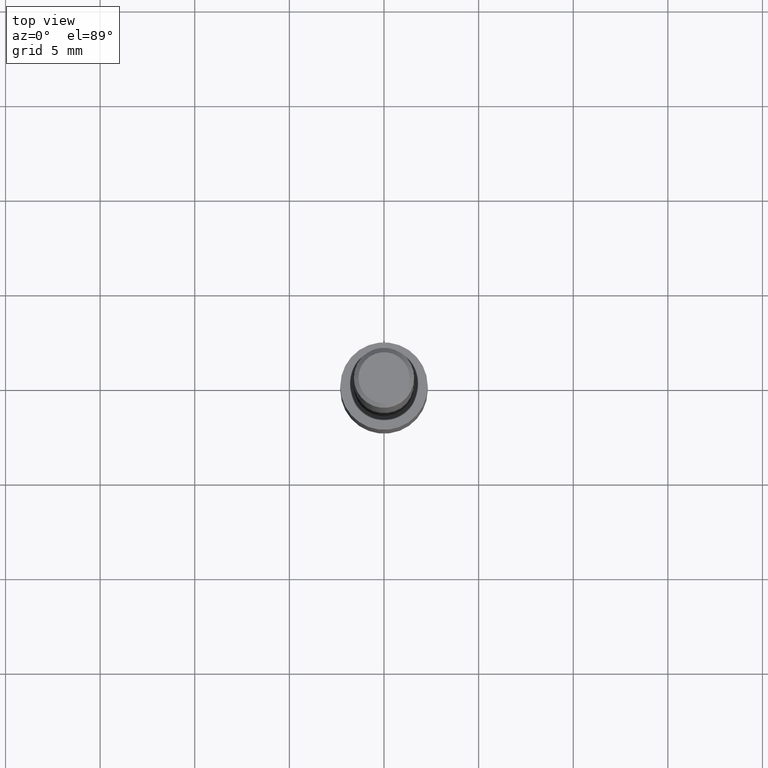
[diagram: clean part render]
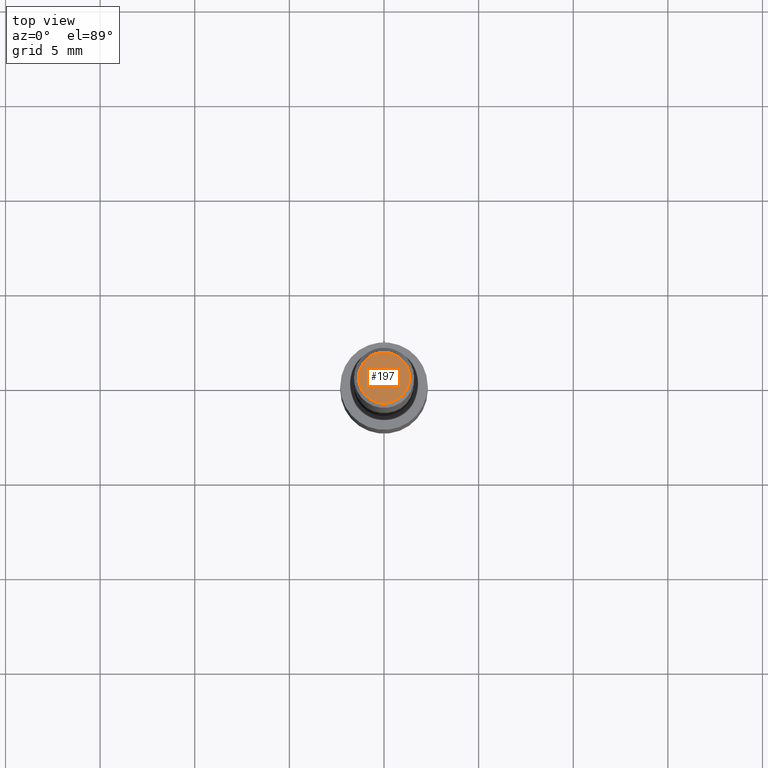
[diagram: same view with one face highlighted and labeled with its STEP entity id]
A machine part, top view. The second image highlights one B-rep face of the part: STEP entity #197.
In plain terms, the highlighted planar face has unit normal (0, -0, -1).
Its self-contained STEP definition (entity closure, byte-faithful):
#7 = CIRCLE ( 'NONE', #179, 0.05312499999999999861 ) ;
#8 = DIRECTION ( 'NONE',  ( 1.000000000000000000, -6.982962677686266711E-15, 4.876176628004948512E-29 ) ) ;
#13 = DIRECTION ( 'NONE',  ( -1.000000000000000000, 6.982962677686265922E-15, -4.876176775795935793E-29 ) ) ;
#65 = VERTEX_POINT ( 'NONE', #319 ) ;
#67 = DIRECTION ( 'NONE',  ( -2.445468806185136597E-29, 3.491481338843145583E-15, 1.000000000000000000 ) ) ;
#97 = VERTEX_POINT ( 'NONE', #259 ) ;
#120 = CARTESIAN_POINT ( 'NONE',  ( -7.487088864773345706E-50, 1.068957861474247695E-35, 3.061616997868395197E-21 ) ) ;
#121 = ORIENTED_EDGE ( 'NONE', *, *, #316, .T. ) ;
#124 = CARTESIAN_POINT ( 'NONE',  ( -7.487088864773345706E-50, 1.068957861474247695E-35, 3.061616997868395197E-21 ) ) ;
#154 = DIRECTION ( 'NONE',  ( -2.445468806185136597E-29, 3.491481338843145583E-15, 1.000000000000000000 ) ) ;
#169 = CIRCLE ( 'NONE', #222, 0.05312499999999999861 ) ;
#179 = AXIS2_PLACEMENT_3D ( 'NONE', #124, #154, #254 ) ;
#197 = ADVANCED_FACE ( 'NONE', ( #233 ), #289, .F. ) ;
#215 = CARTESIAN_POINT ( 'NONE',  ( -3.743544432386672853E-50, 5.344789307371238476E-36, 1.530808498934197599E-21 ) ) ;
#222 = AXIS2_PLACEMENT_3D ( 'NONE', #120, #67, #8 ) ;
#227 = ORIENTED_EDGE ( 'NONE', *, *, #272, .T. ) ;
#233 = FACE_OUTER_BOUND ( 'NONE', #296, .T. ) ;
#254 = DIRECTION ( 'NONE',  ( 1.000000000000000000, -6.982962677686266711E-15, 4.876176628004948512E-29 ) ) ;
#259 = CARTESIAN_POINT ( 'NONE',  ( -0.05312499999999999861, 3.873362110279099094E-16, 3.061616995216862494E-21 ) ) ;
#272 = EDGE_CURVE ( 'NONE', #97, #65, #7, .T. ) ;
#273 = AXIS2_PLACEMENT_3D ( 'NONE', #215, #320, #13 ) ;
#289 = PLANE ( 'NONE',  #273 ) ;
#296 = EDGE_LOOP ( 'NONE', ( #227, #121 ) ) ;
#316 = EDGE_CURVE ( 'NONE', #65, #97, #169, .T. ) ;
#319 = CARTESIAN_POINT ( 'NONE',  ( 0.05312499999999999861, -4.129888592719939842E-16, 3.061617000609493422E-21 ) ) ;
#320 = DIRECTION ( 'NONE',  ( 2.438088387897960049E-29, -3.491481338843145188E-15, -1.000000000000000000 ) ) ;